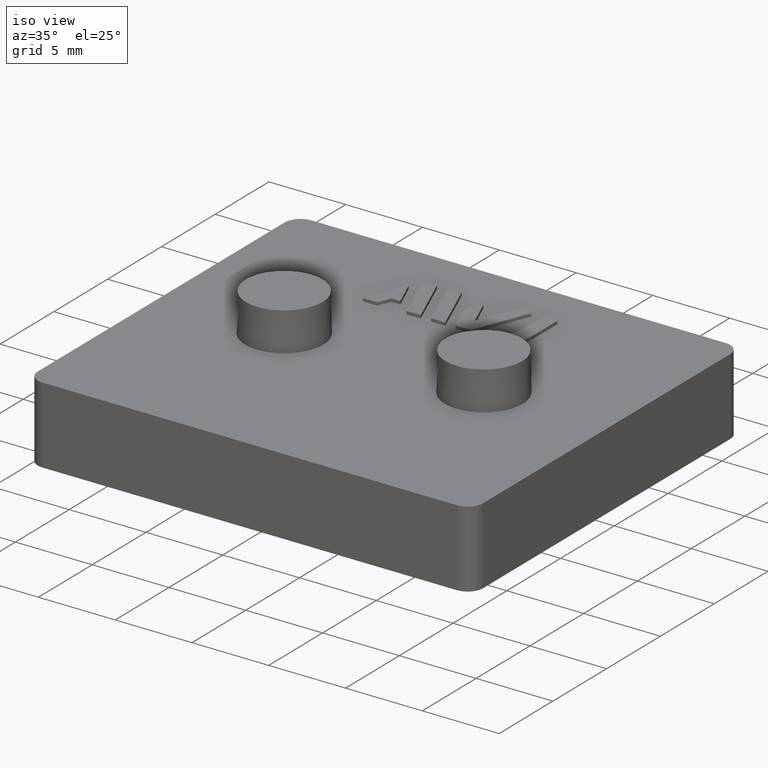
[diagram: clean part render]
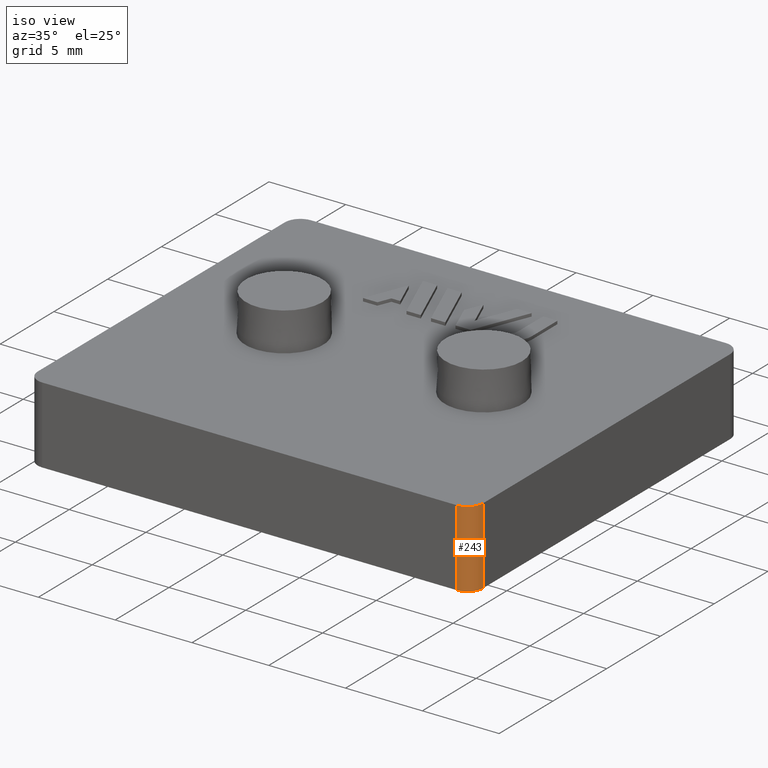
[diagram: same view with one face highlighted and labeled with its STEP entity id]
A machine part, iso view. The second image highlights one B-rep face of the part: STEP entity #243.
In plain terms, the highlighted cylindrical surface (edge-blend (fillet) strip) has radius 1 mm, axis along (-0, -0, -1).
Its self-contained STEP definition (entity closure, byte-faithful):
#243 = ADVANCED_FACE( '', ( #636 ), #637, .T. );
#636 = FACE_OUTER_BOUND( '', #1052, .T. );
#637 = CYLINDRICAL_SURFACE( '', #1053, 0.999999999999987 );
#1052 = EDGE_LOOP( '', ( #2464, #2465, #2466, #2467 ) );
#1053 = AXIS2_PLACEMENT_3D( '', #2468, #2469, #2470 );
#2464 = ORIENTED_EDGE( '', *, *, #3099, .T. );
#2465 = ORIENTED_EDGE( '', *, *, #2643, .T. );
#2466 = ORIENTED_EDGE( '', *, *, #2671, .F. );
#2467 = ORIENTED_EDGE( '', *, *, #2801, .F. );
#2468 = CARTESIAN_POINT( '', ( 13.5000000000000, -11.5000000000000, -50.5034822749030 ) );
#2469 = DIRECTION( '', ( -1.49519739311857E-016, -2.33178017899756E-016, -1.00000000000000 ) );
#2470 = DIRECTION( '', ( 1.00000000000000, -4.62592926927148E-016, -1.49519739311857E-016 ) );
#2643 = EDGE_CURVE( '', #3132, #3133, #3134, .T. );
#2671 = EDGE_CURVE( '', #3186, #3133, #3189, .T. );
#2801 = EDGE_CURVE( '', #3444, #3186, #3446, .T. );
#3099 = EDGE_CURVE( '', #3444, #3132, #3897, .T. );
#3132 = VERTEX_POINT( '', #3941 );
#3133 = VERTEX_POINT( '', #3942 );
#3134 = CIRCLE( '', #3943, 0.999999999999987 );
#3186 = VERTEX_POINT( '', #4014 );
#3189 = LINE( '', #4018, #4019 );
#3444 = VERTEX_POINT( '', #4402 );
#3446 = CIRCLE( '', #4405, 0.999999999999987 );
#3897 = LINE( '', #5146, #5147 );
#3941 = CARTESIAN_POINT( '', ( 14.5000000000000, -11.5000000000000, 4.99999999999999 ) );
#3942 = CARTESIAN_POINT( '', ( 13.5000000000000, -12.5000000000000, 4.99999999999999 ) );
#3943 = AXIS2_PLACEMENT_3D( '', #5179, #5180, #5181 );
#4014 = CARTESIAN_POINT( '', ( 13.5000000000000, -12.5000000000000, -6.17351493276824E-015 ) );
#4018 = CARTESIAN_POINT( '', ( 13.5000000000000, -12.5000000000000, -50.5034822749030 ) );
#4019 = VECTOR( '', #5223, 1000.00000000000 );
#4402 = CARTESIAN_POINT( '', ( 14.5000000000000, -11.5000000000000, -6.23474525045936E-015 ) );
#4405 = AXIS2_PLACEMENT_3D( '', #5353, #5354, #5355 );
#5146 = CARTESIAN_POINT( '', ( 14.5000000000000, -11.5000000000000, -50.5034822749030 ) );
#5147 = VECTOR( '', #5667, 1000.00000000000 );
#5179 = CARTESIAN_POINT( '', ( 13.5000000000000, -11.5000000000000, 4.99999999999999 ) );
#5180 = DIRECTION( '', ( 0.000000000000000, -6.12303176911189E-017, -1.00000000000000 ) );
#5181 = DIRECTION( '', ( 0.000000000000000, 1.00000000000000, -6.12303176911189E-017 ) );
#5223 = DIRECTION( '', ( 1.49519739311857E-016, 2.33178017899756E-016, 1.00000000000000 ) );
#5353 = CARTESIAN_POINT( '', ( 13.5000000000000, -11.5000000000000, -6.23474525045936E-015 ) );
#5354 = DIRECTION( '', ( 0.000000000000000, -6.12303176911189E-017, -1.00000000000000 ) );
#5355 = DIRECTION( '', ( 0.000000000000000, 1.00000000000000, -6.12303176911189E-017 ) );
#5667 = DIRECTION( '', ( 1.49519739311857E-016, 2.33178017899756E-016, 1.00000000000000 ) );